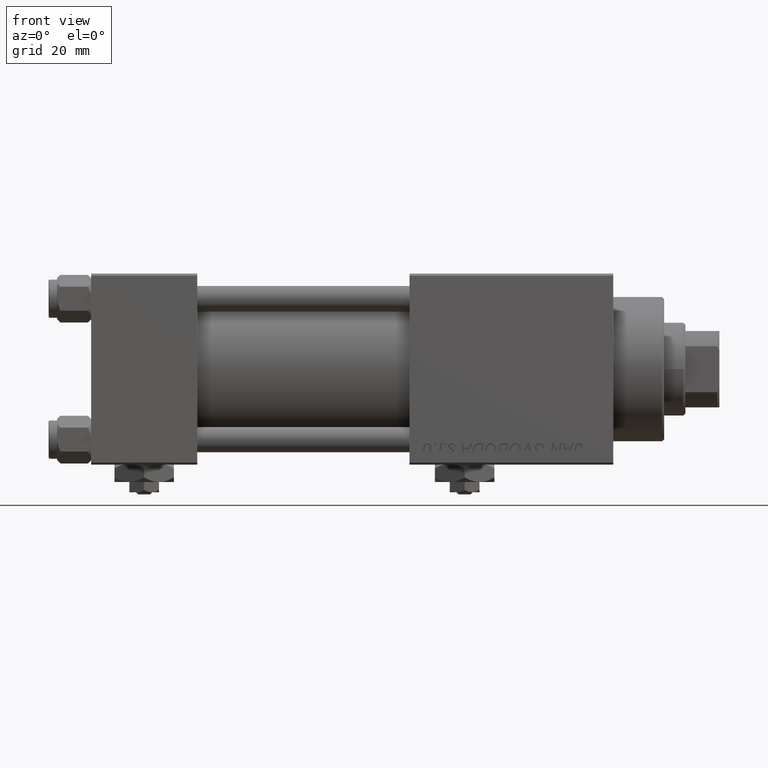
[diagram: clean part render]
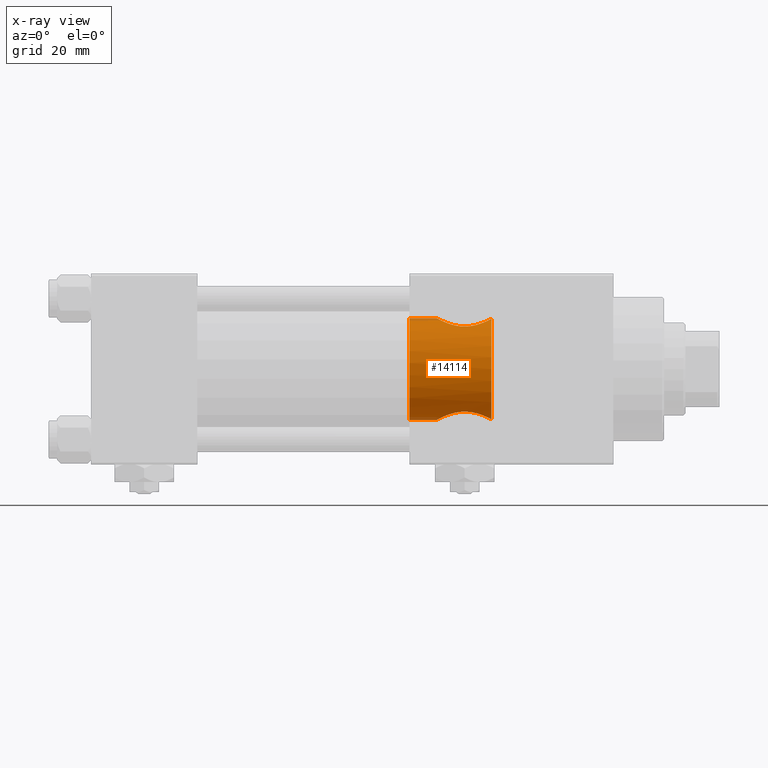
[diagram: x-ray — body ghosted, one internal face saturated and labeled with its STEP entity id]
A machine part, front view, then the same camera in x-ray: the body is ghosted and one INTERNAL B-rep face — a face not visible from any outside direction — is saturated and labeled: STEP entity #14114.
In plain terms, the highlighted cylindrical surface (partial cylindrical patch) has radius 12 mm, axis along (1, 0, 0).
Its self-contained STEP definition (entity closure, byte-faithful):
#167 = CARTESIAN_POINT ( 'NONE',  ( 81.56395315102130894, -1.383303317825534062, 11.92163510970724971 ) ) ;
#586 = AXIS2_PLACEMENT_3D ( 'NONE', #29663, #45778, #25705 ) ;
#699 = CARTESIAN_POINT ( 'NONE',  ( 85.52064445426731254, -6.098144367882026629, 10.33542248025770860 ) ) ;
#966 = CARTESIAN_POINT ( 'NONE',  ( 81.98561383412463499, -2.697465198051460789, 11.69882456468388376 ) ) ;
#1079 = CARTESIAN_POINT ( 'NONE',  ( 93.01357504179296143, -4.279028506151157707, -11.21591504426861974 ) ) ;
#2067 = DIRECTION ( 'NONE',  ( -1.000000000000000000, 0.000000000000000000, -0.000000000000000000 ) ) ;
#2150 = CARTESIAN_POINT ( 'NONE',  ( 81.42000000000000171, 0.000000000000000000, -12.00000000000000178 ) ) ;
#2583 = CARTESIAN_POINT ( 'NONE',  ( 93.01155594446152008, -4.281437546902500557, 11.21500550341173863 ) ) ;
#2697 = CARTESIAN_POINT ( 'NONE',  ( 87.82202284816973759, -6.589881777241063610, -10.02864528821623047 ) ) ;
#2845 = CARTESIAN_POINT ( 'NONE',  ( 92.18893691967821269, -5.078008749725831272, 10.87340577274958164 ) ) ;
#3471 = CARTESIAN_POINT ( 'NONE',  ( 94.30000000000001137, 0.000000000000000000, 0.000000000000000000 ) ) ;
#3494 = CARTESIAN_POINT ( 'NONE',  ( 82.15777492485329958, -3.052064219787929300, -11.61055483663801091 ) ) ;
#3742 = CARTESIAN_POINT ( 'NONE',  ( 82.78671227587224735, -4.032969303580066445, -11.30624050094337107 ) ) ;
#3887 = CARTESIAN_POINT ( 'NONE',  ( 88.04338309676340657, -6.582852539851475449, 10.03325114525026862 ) ) ;
#4000 = CARTESIAN_POINT ( 'NONE',  ( 93.47467585420724845, -3.655395224798804410, -11.43099259955086922 ) ) ;
#4263 = CARTESIAN_POINT ( 'NONE',  ( 92.75679532138978800, -4.562397026557755808, -11.10248705746252718 ) ) ;
#4408 = CARTESIAN_POINT ( 'NONE',  ( 86.64933611902864641, -6.452212448331274608, 10.11798947633288925 ) ) ;
#4525 = CARTESIAN_POINT ( 'NONE',  ( 93.77573915450940945, -3.158281344663283363, -11.57829893973813817 ) ) ;
#4669 = CARTESIAN_POINT ( 'NONE',  ( 89.61262682924856904, -6.382418177023039263, 10.16205234327171070 ) ) ;
#4934 = CARTESIAN_POINT ( 'NONE',  ( 81.41999999999998749, -0.3987589306235777564, 12.00000000000000178 ) ) ;
#5053 = CARTESIAN_POINT ( 'NONE',  ( 92.19638879643258633, -5.082606558323552015, -10.87418024783258552 ) ) ;
#5261 = EDGE_CURVE ( 'NONE', #12976, #48985, #44208, .T. ) ;
#6655 = CARTESIAN_POINT ( 'NONE',  ( 86.06931601402125409, -6.293451861499265831, -10.21753120936648429 ) ) ;
#7322 = CARTESIAN_POINT ( 'NONE',  ( 92.75461516124364891, -4.564627351372486430, 11.10155823484087279 ) ) ;
#7441 = CARTESIAN_POINT ( 'NONE',  ( 83.29004583883940427, -4.610807098320863773, -11.08315720229868617 ) ) ;
#7641 = EDGE_CURVE ( 'NONE', #18987, #18293, #25658, .T. ) ;
#7696 = CARTESIAN_POINT ( 'NONE',  ( 81.71555220486855831, -1.959981060626224902, -11.84043277816519435 ) ) ;
#8221 = CARTESIAN_POINT ( 'NONE',  ( 94.18549061255440336, -2.278930877144365041, -11.78789585387169403 ) ) ;
#8890 = CARTESIAN_POINT ( 'NONE',  ( 81.77783752250837779, -2.149251954852693824, 11.80743069880358753 ) ) ;
#9637 = FACE_OUTER_BOUND ( 'NONE', #25936, .T. ) ;
#10591 = ORIENTED_EDGE ( 'NONE', *, *, #5261, .T. ) ;
#10611 = CARTESIAN_POINT ( 'NONE',  ( 84.01331525193313610, -5.238291972057508517, -10.79713605771933160 ) ) ;
#11138 = CARTESIAN_POINT ( 'NONE',  ( 81.42000000000000171, 0.000000000000000000, -12.00000000000000178 ) ) ;
#11397 = CARTESIAN_POINT ( 'NONE',  ( 89.02254417083196358, -6.503121590872923186, -10.08515231352015817 ) ) ;
#11653 = CARTESIAN_POINT ( 'NONE',  ( 87.42594531757241327, -6.566788916089255856, -10.04400461243614195 ) ) ;
#11695 = EDGE_CURVE ( 'NONE', #47032, #36906, #13693, .T. ) ;
#12316 = CARTESIAN_POINT ( 'NONE',  ( 83.56113700165016667, -4.872522839515975868, 10.96952017908725630 ) ) ;
#12850 = CARTESIAN_POINT ( 'NONE',  ( 87.44221154047806976, -6.559398433601089984, 10.04860498654694823 ) ) ;
#12976 = VERTEX_POINT ( 'NONE', #34184 ) ;
#13595 = CYLINDRICAL_SURFACE ( 'NONE', #586, 12.00000000000000178 ) ;
#13693 = LINE ( 'NONE', #19466, #47703 ) ;
#14114 = ADVANCED_FACE ( 'NONE', ( #9637 ), #13595, .F. ) ;
#14187 = CIRCLE ( 'NONE', #16706, 12.00000000000000178 ) ;
#14759 = ORIENTED_EDGE ( 'NONE', *, *, #35491, .F. ) ;
#15091 = CARTESIAN_POINT ( 'NONE',  ( 84.65300812393267904, -5.668415646265348329, -10.57734621316974710 ) ) ;
#15349 = CARTESIAN_POINT ( 'NONE',  ( 85.15751407917888116, -5.946783670109370590, -10.42499493473494354 ) ) ;
#15493 = CARTESIAN_POINT ( 'NONE',  ( 92.33470223076432148, -4.954109770454556028, 10.93054897555022542 ) ) ;
#16011 = CARTESIAN_POINT ( 'NONE',  ( 88.63868773215152430, -6.560960036370746984, 10.04759214048445948 ) ) ;
#16529 = CARTESIAN_POINT ( 'NONE',  ( 90.36442671337263732, -6.143566170091887990, 10.30844919719950781 ) ) ;
#16706 = AXIS2_PLACEMENT_3D ( 'NONE', #21850, #2067, #25282 ) ;
#16804 = CARTESIAN_POINT ( 'NONE',  ( 85.16320872901937378, -5.940301670670843137, 10.42694291910975046 ) ) ;
#17474 = ORIENTED_EDGE ( 'NONE', *, *, #11695, .F. ) ;
#18293 = VERTEX_POINT ( 'NONE', #47037 ) ;
#18779 = CARTESIAN_POINT ( 'NONE',  ( 88.42507150703904983, -6.569335479335062011, -10.04210627302202852 ) ) ;
#18926 = CARTESIAN_POINT ( 'NONE',  ( 91.72673468970526756, -5.426328151739157946, 10.70368258044636356 ) ) ;
#18987 = VERTEX_POINT ( 'NONE', #30923 ) ;
#19466 = CARTESIAN_POINT ( 'NONE',  ( 27.55887450304571473, 0.000000000000000000, -12.00000000000000178 ) ) ;
#19875 = EDGE_CURVE ( 'NONE', #47032, #18987, #14187, .T. ) ;
#19965 = CARTESIAN_POINT ( 'NONE',  ( 90.18144946988459765, -6.210994763547172504, 10.26783529976223264 ) ) ;
#19974 = DIRECTION ( 'NONE',  ( 1.000000000000000000, -0.000000000000000000, -0.000000000000000000 ) ) ;
#20485 = CARTESIAN_POINT ( 'NONE',  ( 82.90943709968694009, -4.173635198167837679, 11.25187747779291314 ) ) ;
#20601 = CARTESIAN_POINT ( 'NONE',  ( 91.88984072492395683, -5.321141866222918182, -10.75829903036262891 ) ) ;
#20748 = CARTESIAN_POINT ( 'NONE',  ( 89.03095050380548514, -6.510856269794945916, 10.08062642345327120 ) ) ;
#21020 = CARTESIAN_POINT ( 'NONE',  ( 85.70524222956265703, -6.170038997559282201, 10.29252570320665150 ) ) ;
#21134 = CARTESIAN_POINT ( 'NONE',  ( 94.03936034568639002, -2.640557128122023922, -11.71129572733442004 ) ) ;
#21850 = CARTESIAN_POINT ( 'NONE',  ( 75.00000000000001421, 0.000000000000000000, 0.000000000000000000 ) ) ;
#22718 = CARTESIAN_POINT ( 'NONE',  ( 86.84016461310811508, -6.479980380914417637, -10.10005151441031401 ) ) ;
#23017 = AXIS2_PLACEMENT_3D ( 'NONE', #3471, #48285, #31907 ) ;
#23390 = CARTESIAN_POINT ( 'NONE',  ( 90.90036750558618905, -5.918981686858812985, 10.44010423036056778 ) ) ;
#23507 = CARTESIAN_POINT ( 'NONE',  ( 90.17117230666833905, -6.214612551489125281, -10.26564487194540654 ) ) ;
#23765 = CARTESIAN_POINT ( 'NONE',  ( 81.77800310767047165, -2.149873960622966873, -11.80734079397296199 ) ) ;
#24811 = CARTESIAN_POINT ( 'NONE',  ( 93.68040522396663050, -3.326708049957805891, -11.53093749921550959 ) ) ;
#24955 = CARTESIAN_POINT ( 'NONE',  ( 81.45594931342614586, -0.7944237263419130501, 11.98017270223897235 ) ) ;
#25282 = DIRECTION ( 'NONE',  ( 0.000000000000000000, 0.000000000000000000, 1.000000000000000000 ) ) ;
#25405 = CARTESIAN_POINT ( 'NONE',  ( 27.55887450304571473, 1.469576158976824144E-15, 12.00000000000000178 ) ) ;
#25600 = ORIENTED_EDGE ( 'NONE', *, *, #19875, .T. ) ;
#25658 = LINE ( 'NONE', #25405, #43339 ) ;
#25705 = DIRECTION ( 'NONE',  ( 0.000000000000000000, 0.000000000000000000, -1.000000000000000000 ) ) ;
#25936 = EDGE_LOOP ( 'NONE', ( #25600, #30012, #52006, #10591, #14759, #17474 ) ) ;
#26684 = CARTESIAN_POINT ( 'NONE',  ( 84.16950859590494360, -5.353578559402055959, -10.74028609170894377 ) ) ;
#26832 = CARTESIAN_POINT ( 'NONE',  ( 93.47922161013028131, -3.663950190651517502, 11.43164576559327905 ) ) ;
#27205 = CARTESIAN_POINT ( 'NONE',  ( 83.56477307068256266, -4.875755771715955866, -10.96806295515661311 ) ) ;
#27466 = CARTESIAN_POINT ( 'NONE',  ( 89.79457237478389686, -6.333633107627272274, -10.19264271227010710 ) ) ;
#27728 = CARTESIAN_POINT ( 'NONE',  ( 85.51068841876313797, -6.103641191814396905, -10.33283531230092933 ) ) ;
#27872 = CARTESIAN_POINT ( 'NONE',  ( 81.71629779899160440, -1.962378304040151011, 11.84003675942547673 ) ) ;
#28387 = CARTESIAN_POINT ( 'NONE',  ( 83.28639562774002059, -4.607057570676570180, 11.08471608617320392 ) ) ;
#28660 = CARTESIAN_POINT ( 'NONE',  ( 87.24099402833643069, -6.539116494941770164, 10.06186586056366750 ) ) ;
#28918 = CARTESIAN_POINT ( 'NONE',  ( 87.84379216343923247, -6.581218343749225319, 10.03432783490170976 ) ) ;
#29663 = CARTESIAN_POINT ( 'NONE',  ( 27.55887450304571473, 0.000000000000000000, 0.000000000000000000 ) ) ;
#30012 = ORIENTED_EDGE ( 'NONE', *, *, #7641, .T. ) ;
#30769 = CARTESIAN_POINT ( 'NONE',  ( 94.18477677513206459, -2.281298992827701877, 11.78751630630980607 ) ) ;
#30923 = CARTESIAN_POINT ( 'NONE',  ( 75.00000000000001421, 1.469576158976824144E-15, 12.00000000000000178 ) ) ;
#31151 = CARTESIAN_POINT ( 'NONE',  ( 81.56427789244726512, -1.384587371817339152, -11.92146021698038361 ) ) ;
#31412 = CARTESIAN_POINT ( 'NONE',  ( 86.26132929367520319, -6.349223580012632873, -10.18284756273197367 ) ) ;
#31668 = CARTESIAN_POINT ( 'NONE',  ( 81.45686893222119807, -0.8004003830740871184, -11.97967206595166445 ) ) ;
#31907 = DIRECTION ( 'NONE',  ( 0.000000000000000000, 0.000000000000000000, -1.000000000000000000 ) ) ;
#31929 = CARTESIAN_POINT ( 'NONE',  ( 81.42000000000003013, -0.4039441703435516784, -12.00000000000000888 ) ) ;
#32342 = CARTESIAN_POINT ( 'NONE',  ( 84.48210468445526544, -5.574052804316229626, 10.62898043420413252 ) ) ;
#32726 = CARTESIAN_POINT ( 'NONE',  ( 90.89916650971819934, -5.919832778523199224, -10.43964611535238696 ) ) ;
#32876 = CARTESIAN_POINT ( 'NONE',  ( 84.98945031834360009, -5.854084355677485974, 10.47573476137173643 ) ) ;
#34184 = CARTESIAN_POINT ( 'NONE',  ( 94.30000000000001137, -1.899052395275089067, 11.84878052796995718 ) ) ;
#34674 = CARTESIAN_POINT ( 'NONE',  ( 94.30000000000001137, -1.899052395275085958, -11.84878052796996073 ) ) ;
#34996 = CARTESIAN_POINT ( 'NONE',  ( 91.24045236004087656, -5.739740685217730842, 10.54091119589231518 ) ) ;
#35443 = B_SPLINE_CURVE_WITH_KNOTS ( 'NONE', 3,
 ( #42674, #30769, #43461, #38712, #26832, #2583, #7322, #15493, #2845, #47678, #18926, #34996, #23390, #16529, #19965, #40803, #4669, #20748, #16011, #3887, #28918, #12850, #28660, #4408, #36827, #21020, #699, #16804, #32876, #32342, #48991, #12316, #28387, #20485, #45026, #41070, #36303, #44499, #966, #8890, #27872, #48458, #167, #24955, #4934, #37097 ),
 .UNSPECIFIED., .F., .F.,
 ( 4, 2, 2, 2, 2, 2, 2, 2, 2, 2, 2, 2, 2, 2, 2, 2, 2, 2, 2, 2, 2, 2, 4 ),
 ( 0.000000000000000000, 0.001192670592735514809, 0.002385341185471029617, 0.003578011778206543776, 0.004174347074574301722, 0.004770682370942059235, 0.005963352963677574260, 0.006559688260045349988, 0.007156023556413125715, 0.008348694149148638138, 0.008945029445516394784, 0.009541364741884149694, 0.01073403533461966125, 0.01133037063098741790, 0.01192670592735517281, 0.01311937652009071906, 0.01431204711282626531, 0.01490838240919403930, 0.01550471770556181503, 0.01669738829829738036, 0.01729372359466516823, 0.01789005889103295263, 0.01908272948376852837 ),
 .UNSPECIFIED. ) ;
#35491 = EDGE_CURVE ( 'NONE', #36906, #48985, #47630, .T. ) ;
#35644 = CARTESIAN_POINT ( 'NONE',  ( 82.55658498352934771, -3.716977641692834844, -11.41508461762082582 ) ) ;
#36303 = CARTESIAN_POINT ( 'NONE',  ( 82.45420827143600206, -3.546596150375938006, 11.46524487954329530 ) ) ;
#36827 = CARTESIAN_POINT ( 'NONE',  ( 86.26571117503740993, -6.359577037598437954, 10.17731036340830997 ) ) ;
#36906 = VERTEX_POINT ( 'NONE', #2150 ) ;
#37097 = CARTESIAN_POINT ( 'NONE',  ( 81.42000000000000171, 1.469576107744199801E-15, 12.00000000000000178 ) ) ;
#38712 = CARTESIAN_POINT ( 'NONE',  ( 93.68578075181308407, -3.334439790209559717, 11.53293512199652149 ) ) ;
#39618 = CARTESIAN_POINT ( 'NONE',  ( 90.35751275856038944, -6.146285889658271273, -10.30683402153421468 ) ) ;
#40397 = CARTESIAN_POINT ( 'NONE',  ( 93.36369266681332135, -3.816360293527020886, -11.37814145276665023 ) ) ;
#40803 = CARTESIAN_POINT ( 'NONE',  ( 89.80612331289052008, -6.330331454284490178, 10.19469476613940273 ) ) ;
#41070 = CARTESIAN_POINT ( 'NONE',  ( 82.56220931812610786, -3.710026521228334317, 11.41328489595128914 ) ) ;
#42028 = CARTESIAN_POINT ( 'NONE',  ( 75.00000000000001421, 0.000000000000000000, -12.00000000000000178 ) ) ;
#42674 = CARTESIAN_POINT ( 'NONE',  ( 94.30000000000001137, -1.899052395275089067, 11.84878052796995718 ) ) ;
#42791 = CARTESIAN_POINT ( 'NONE',  ( 81.98762677740005245, -2.702402954974835403, -11.69777914628557447 ) ) ;
#43339 = VECTOR ( 'NONE', #50201, 1000.000000000000000 ) ;
#43461 = CARTESIAN_POINT ( 'NONE',  ( 94.03789257063225193, -2.643944927135372325, 11.71053527662117055 ) ) ;
#44208 = CIRCLE ( 'NONE', #23017, 12.00000000000000178 ) ;
#44499 = CARTESIAN_POINT ( 'NONE',  ( 82.15480420465904388, -3.046487603127518984, 11.61204766141661793 ) ) ;
#44621 = CARTESIAN_POINT ( 'NONE',  ( 94.30000000000001137, -1.899052395275085958, -11.84878052796996073 ) ) ;
#45026 = CARTESIAN_POINT ( 'NONE',  ( 82.78969099161481893, -4.023250467623474158, 11.30667168441424941 ) ) ;
#45778 = DIRECTION ( 'NONE',  ( 1.000000000000000000, -0.000000000000000000, -0.000000000000000000 ) ) ;
#47010 = CARTESIAN_POINT ( 'NONE',  ( 89.41333164562064439, -6.435514877326045990, -10.12874822989351564 ) ) ;
#47032 = VERTEX_POINT ( 'NONE', #42028 ) ;
#47037 = CARTESIAN_POINT ( 'NONE',  ( 81.42000000000000171, 1.469576107744199801E-15, 12.00000000000000178 ) ) ;
#47630 = B_SPLINE_CURVE_WITH_KNOTS ( 'NONE', 3,
 ( #11138, #31929, #31668, #31151, #51237, #7696, #23765, #42791, #3494, #35644, #3742, #7441, #27205, #10611, #26684, #51499, #15091, #15349, #27728, #6655, #31412, #47791, #22718, #11653, #2697, #18779, #50973, #11397, #47010, #27466, #23507, #39618, #32726, #48310, #20601, #5053, #4263, #1079, #40397, #4000, #24811, #4525, #21134, #8221, #44621 ),
 .UNSPECIFIED., .F., .F.,
 ( 4, 2, 2, 2, 2, 2, 2, 2, 2, 2, 2, 2, 2, 2, 1, 2, 2, 2, 2, 2, 2, 2, 4 ),
 ( 1.681528165494595124E-18, 0.001193107414769645821, 0.001789661122154463527, 0.002386214829539280800, 0.003579322244308903202, 0.004772429659078525170, 0.005965537073848148006, 0.006562090781232943378, 0.007158644488617738749, 0.008351751903387332962, 0.008948305610772148283, 0.009544859318156963604, 0.01073796673292663414, 0.01133452044031148936, 0.01193107414769634805, 0.01252762785508120327, 0.01312418156246605849, 0.01431728897723573424, 0.01551039639200540825, 0.01670350380677507879, 0.01730005751415993054, 0.01789661122154477882, 0.01908971863631449967 ),
 .UNSPECIFIED. ) ;
#47678 = CARTESIAN_POINT ( 'NONE',  ( 91.88529033867185092, -5.313933040936652752, 10.76007628214585132 ) ) ;
#47703 = VECTOR ( 'NONE', #19974, 1000.000000000000000 ) ;
#47791 = CARTESIAN_POINT ( 'NONE',  ( 86.64629950922531521, -6.442290809587590594, -10.12422410259315342 ) ) ;
#48285 = DIRECTION ( 'NONE',  ( 1.000000000000000000, 0.000000000000000000, 0.000000000000000000 ) ) ;
#48310 = CARTESIAN_POINT ( 'NONE',  ( 91.24096198564761551, -5.739475327356521106, -10.54106122522004618 ) ) ;
#48458 = CARTESIAN_POINT ( 'NONE',  ( 81.60938533297500896, -1.579837376672096338, 11.89712204425859454 ) ) ;
#48759 = EDGE_CURVE ( 'NONE', #12976, #18293, #35443, .T. ) ;
#48985 = VERTEX_POINT ( 'NONE', #34674 ) ;
#48991 = CARTESIAN_POINT ( 'NONE',  ( 84.16042478392878934, -5.357485016297855118, 10.74100582260112979 ) ) ;
#50201 = DIRECTION ( 'NONE',  ( 1.000000000000000000, -0.000000000000000000, -0.000000000000000000 ) ) ;
#50973 = CARTESIAN_POINT ( 'NONE',  ( 88.62675594167740201, -6.553118646610329279, -10.05273712060682989 ) ) ;
#51237 = CARTESIAN_POINT ( 'NONE',  ( 81.60882440892129353, -1.577556468639326415, -11.89742365894887755 ) ) ;
#51499 = CARTESIAN_POINT ( 'NONE',  ( 84.48908393322516019, -5.568387213601258878, -10.63050387154098964 ) ) ;
#52006 = ORIENTED_EDGE ( 'NONE', *, *, #48759, .F. ) ;